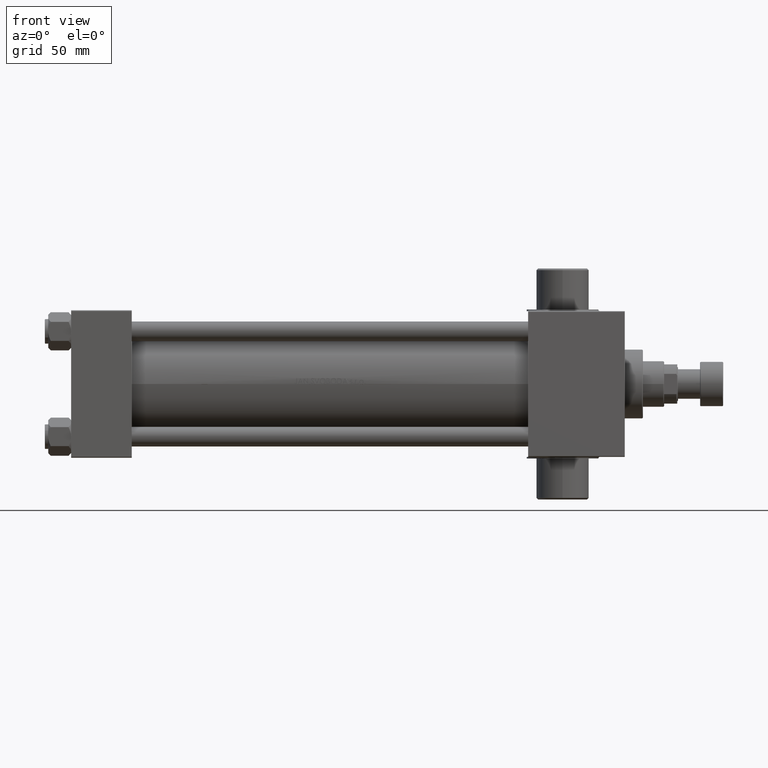
[diagram: clean part render]
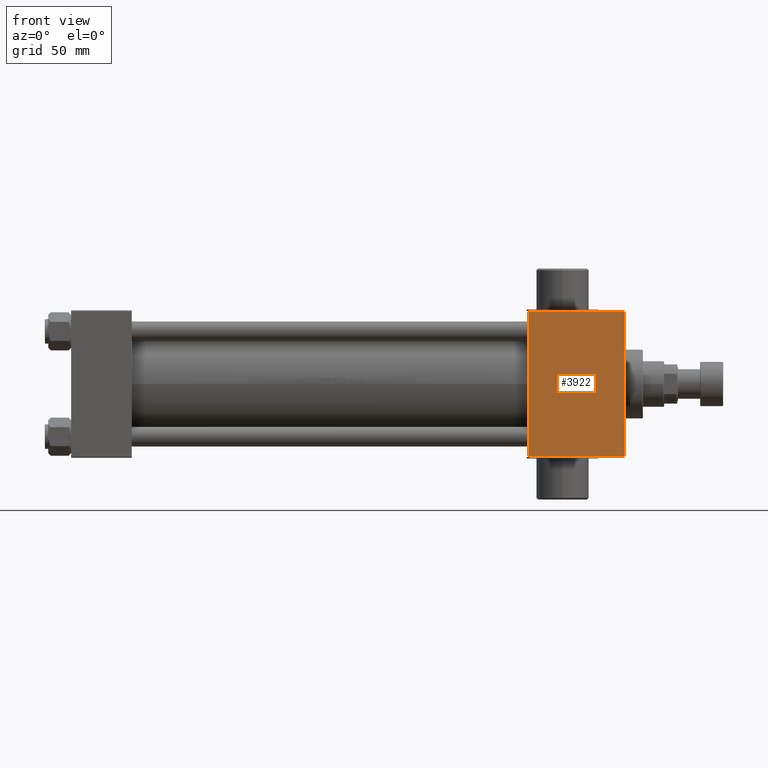
[diagram: same view with one face highlighted and labeled with its STEP entity id]
A machine part, front view. The second image highlights one B-rep face of the part: STEP entity #3922.
In plain terms, the highlighted planar face has unit normal (0, -1, -0).
Its self-contained STEP definition (entity closure, byte-faithful):
#1555 = CARTESIAN_POINT ( 'NONE',  ( 337.9999999999999432, -44.00000000000000000, -45.00000000000001421 ) ) ;
#2888 = VERTEX_POINT ( 'NONE', #35208 ) ;
#3371 = VECTOR ( 'NONE', #16665, 1000.000000000000000 ) ;
#3922 = ADVANCED_FACE ( 'NONE', ( #15905 ), #12801, .T. ) ;
#5895 = DIRECTION ( 'NONE',  ( 0.000000000000000000, 1.000000000000000000, 1.559302000878029206E-16 ) ) ;
#7286 = EDGE_CURVE ( 'NONE', #37563, #7442, #17290, .T. ) ;
#7442 = VERTEX_POINT ( 'NONE', #1555 ) ;
#9895 = LINE ( 'NONE', #45834, #14805 ) ;
#12621 = CARTESIAN_POINT ( 'NONE',  ( 278.9999999999999432, -44.00000000000000000, -45.00000000000001421 ) ) ;
#12801 = PLANE ( 'NONE',  #44850 ) ;
#14805 = VECTOR ( 'NONE', #20835, 1000.000000000000000 ) ;
#15351 = VECTOR ( 'NONE', #28452, 1000.000000000000000 ) ;
#15905 = FACE_OUTER_BOUND ( 'NONE', #28714, .T. ) ;
#16665 = DIRECTION ( 'NONE',  ( -1.000000000000000000, 0.000000000000000000, 0.000000000000000000 ) ) ;
#17290 = LINE ( 'NONE', #45851, #15351 ) ;
#18374 = CARTESIAN_POINT ( 'NONE',  ( 278.9999999999999432, 44.50000000000000000, -45.00000000000000000 ) ) ;
#20835 = DIRECTION ( 'NONE',  ( 1.000000000000000000, 0.000000000000000000, 0.000000000000000000 ) ) ;
#26500 = CARTESIAN_POINT ( 'NONE',  ( 278.9999999999999432, -44.00000000000000000, -45.00000000000001421 ) ) ;
#27260 = EDGE_CURVE ( 'NONE', #7442, #36925, #45452, .T. ) ;
#28452 = DIRECTION ( 'NONE',  ( 0.000000000000000000, -1.000000000000000000, -1.559302000878028960E-16 ) ) ;
#28714 = EDGE_LOOP ( 'NONE', ( #31633, #42439, #30502, #34443 ) ) ;
#28988 = EDGE_CURVE ( 'NONE', #2888, #37563, #9895, .T. ) ;
#30502 = ORIENTED_EDGE ( 'NONE', *, *, #38644, .F. ) ;
#31118 = CARTESIAN_POINT ( 'NONE',  ( 337.9999999999999432, 44.00000000000000000, -45.00000000000000000 ) ) ;
#31633 = ORIENTED_EDGE ( 'NONE', *, *, #7286, .T. ) ;
#34443 = ORIENTED_EDGE ( 'NONE', *, *, #28988, .T. ) ;
#34454 = CARTESIAN_POINT ( 'NONE',  ( 337.9999999999999432, 44.50000000000000000, -45.00000000000000000 ) ) ;
#35208 = CARTESIAN_POINT ( 'NONE',  ( 278.9999999999999432, 44.00000000000000000, -45.00000000000000000 ) ) ;
#36236 = LINE ( 'NONE', #18374, #38566 ) ;
#36925 = VERTEX_POINT ( 'NONE', #26500 ) ;
#37563 = VERTEX_POINT ( 'NONE', #31118 ) ;
#38566 = VECTOR ( 'NONE', #43589, 1000.000000000000000 ) ;
#38644 = EDGE_CURVE ( 'NONE', #2888, #36925, #36236, .T. ) ;
#41812 = DIRECTION ( 'NONE',  ( 0.000000000000000000, 1.559302000878029206E-16, -1.000000000000000000 ) ) ;
#42439 = ORIENTED_EDGE ( 'NONE', *, *, #27260, .T. ) ;
#43589 = DIRECTION ( 'NONE',  ( 0.000000000000000000, -1.000000000000000000, -1.559302000878028960E-16 ) ) ;
#44850 = AXIS2_PLACEMENT_3D ( 'NONE', #34454, #41812, #5895 ) ;
#45452 = LINE ( 'NONE', #12621, #3371 ) ;
#45834 = CARTESIAN_POINT ( 'NONE',  ( 337.9999999999999432, 44.00000000000000000, -45.00000000000000000 ) ) ;
#45851 = CARTESIAN_POINT ( 'NONE',  ( 337.9999999999999432, 44.50000000000000000, -45.00000000000000000 ) ) ;